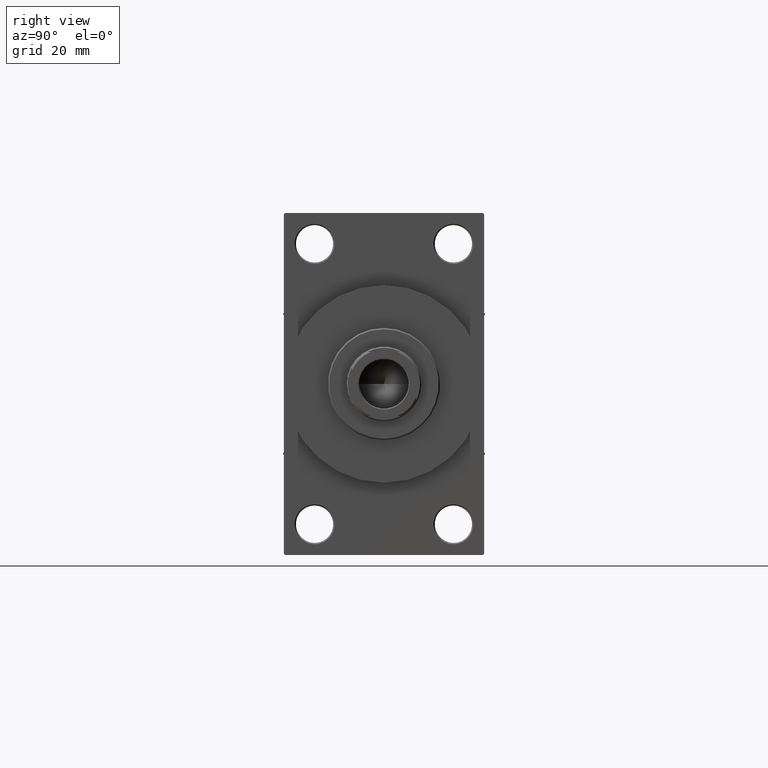
[diagram: clean part render]
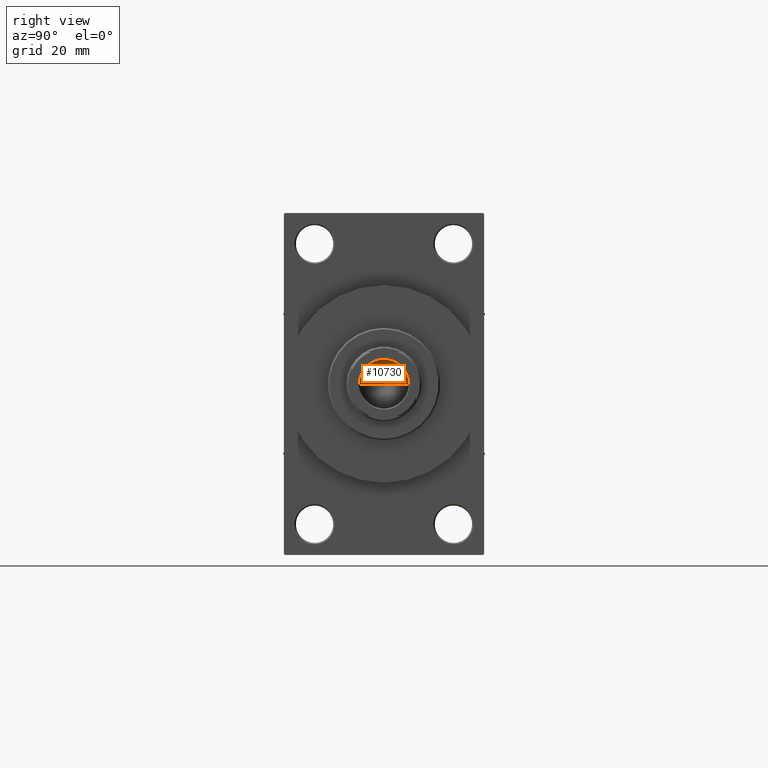
[diagram: same view with one face highlighted and labeled with its STEP entity id]
A machine part, right view. The second image highlights one B-rep face of the part: STEP entity #10730.
In plain terms, the highlighted conical surface has half-angle 59 deg.
Its self-contained STEP definition (entity closure, byte-faithful):
#1720 = ORIENTED_EDGE ( 'NONE', *, *, #31794, .F. ) ;
#2477 = CARTESIAN_POINT ( 'NONE',  ( -9.249999999999992895, 1.132798289211300712E-15, 142.0000000000000284 ) ) ;
#2952 = LINE ( 'NONE', #2477, #31595 ) ;
#3754 = DIRECTION ( 'NONE',  ( 1.000000000000000000, 0.000000000000000000, 0.000000000000000000 ) ) ;
#5105 = VERTEX_POINT ( 'NONE', #46025 ) ;
#10730 = ADVANCED_FACE ( 'NONE', ( #34251 ), #12521, .F. ) ;
#10910 = CARTESIAN_POINT ( 'NONE',  ( 0.000000000000000000, 0.000000000000000000, 142.0000000000000284 ) ) ;
#11142 = DIRECTION ( 'NONE',  ( -0.000000000000000000, -0.000000000000000000, 1.000000000000000000 ) ) ;
#12287 = CARTESIAN_POINT ( 'NONE',  ( 0.000000000000000000, 0.000000000000000000, 142.0000000000000284 ) ) ;
#12521 = CONICAL_SURFACE ( 'NONE', #35385, 9.249999999999992895, 1.029744258676652313 ) ;
#16108 = DIRECTION ( 'NONE',  ( -0.000000000000000000, -0.000000000000000000, 1.000000000000000000 ) ) ;
#18937 = VERTEX_POINT ( 'NONE', #45588 ) ;
#20059 = CARTESIAN_POINT ( 'NONE',  ( 9.249999999999992895, 0.000000000000000000, 142.0000000000000284 ) ) ;
#21637 = AXIS2_PLACEMENT_3D ( 'NONE', #10910, #11142, #3754 ) ;
#26454 = ORIENTED_EDGE ( 'NONE', *, *, #38021, .T. ) ;
#27149 = EDGE_LOOP ( 'NONE', ( #1720, #39417, #26454 ) ) ;
#27704 = LINE ( 'NONE', #20059, #42018 ) ;
#31595 = VECTOR ( 'NONE', #45917, 1000.000000000000000 ) ;
#31794 = EDGE_CURVE ( 'NONE', #5105, #42551, #27704, .T. ) ;
#32122 = CARTESIAN_POINT ( 'NONE',  ( 9.249999999999992895, 0.000000000000000000, 142.0000000000000284 ) ) ;
#34251 = FACE_OUTER_BOUND ( 'NONE', #27149, .T. ) ;
#35385 = AXIS2_PLACEMENT_3D ( 'NONE', #12287, #16108, #45218 ) ;
#38021 = EDGE_CURVE ( 'NONE', #18937, #42551, #39922, .T. ) ;
#39417 = ORIENTED_EDGE ( 'NONE', *, *, #39576, .T. ) ;
#39576 = EDGE_CURVE ( 'NONE', #5105, #18937, #2952, .T. ) ;
#39922 = CIRCLE ( 'NONE', #21637, 9.249999999999992895 ) ;
#42018 = VECTOR ( 'NONE', #45372, 1000.000000000000000 ) ;
#42551 = VERTEX_POINT ( 'NONE', #32122 ) ;
#45218 = DIRECTION ( 'NONE',  ( 1.000000000000000000, 0.000000000000000000, 0.000000000000000000 ) ) ;
#45372 = DIRECTION ( 'NONE',  ( 0.8571673007021112234, 0.000000000000000000, 0.5150380749100560429 ) ) ;
#45588 = CARTESIAN_POINT ( 'NONE',  ( -9.249999999999992895, 1.132798289211300712E-15, 142.0000000000000284 ) ) ;
#45917 = DIRECTION ( 'NONE',  ( -0.8571673007021112234, 1.049727191138617340E-16, 0.5150380749100560429 ) ) ;
#46025 = CARTESIAN_POINT ( 'NONE',  ( -9.769621978240258809E-15, 0.000000000000000000, 136.4420392739950501 ) ) ;